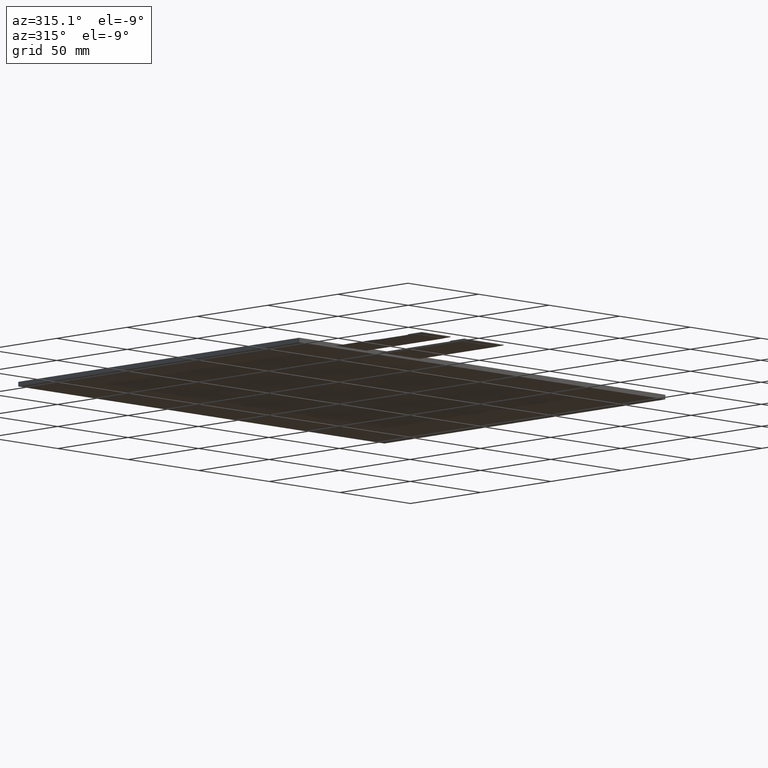
[diagram: clean part render]
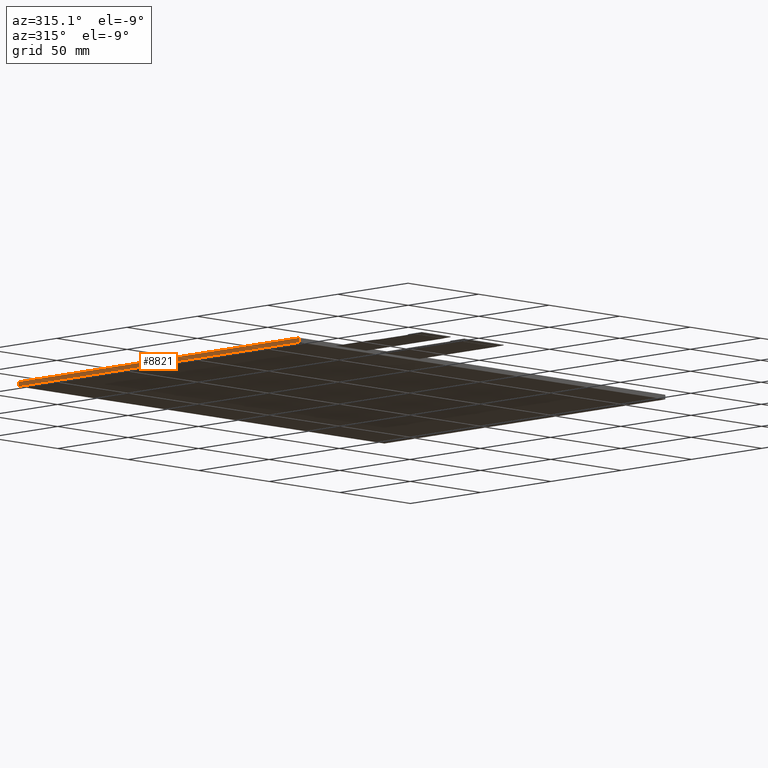
[diagram: same view with one face highlighted and labeled with its STEP entity id]
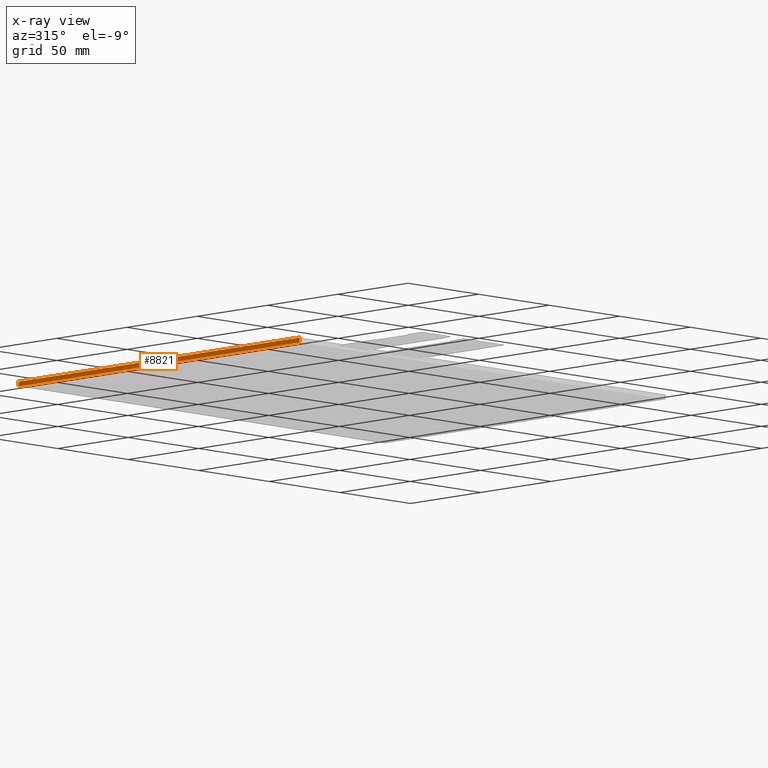
[diagram: x-ray of the same camera — body ghosted, the highlighted face saturated]
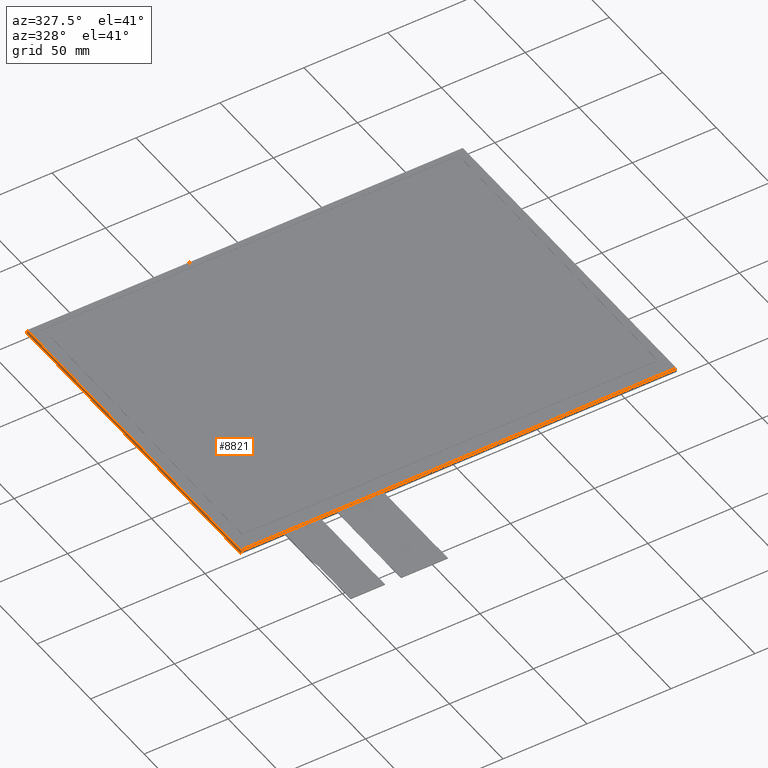
[diagram: same view with one face highlighted and labeled with its STEP entity id]
A machine part, auxiliary view. The second image highlights one B-rep face of the part: STEP entity #8821.
The next image is the same camera in x-ray: the body ghosted, the highlighted face saturated — about 0% of this face is hidden behind the body in this view.
A second angle (auxiliary view) of the same face is appended — the face is thin or edge-on in the first view.
In plain terms, the highlighted planar face has unit normal (-1, -0, 0).
Its self-contained STEP definition (entity closure, byte-faithful):
#485=PLANE('',#9275);
#907=FACE_OUTER_BOUND('',#1331,.T.);
#1331=EDGE_LOOP('',(#8367,#8368,#8369,#8370));
#2564=LINE('',#13868,#3800);
#2567=LINE('',#13874,#3803);
#2568=LINE('',#13876,#3804);
#2569=LINE('',#13877,#3805);
#3800=VECTOR('',#11364,10.);
#3803=VECTOR('',#11369,10.);
#3804=VECTOR('',#11370,10.);
#3805=VECTOR('',#11371,10.);
#4648=VERTEX_POINT('',#13865);
#4649=VERTEX_POINT('',#13867);
#4651=VERTEX_POINT('',#13873);
#4652=VERTEX_POINT('',#13875);
#5892=EDGE_CURVE('',#4648,#4649,#2564,.T.);
#5895=EDGE_CURVE('',#4648,#4651,#2567,.T.);
#5896=EDGE_CURVE('',#4652,#4651,#2568,.T.);
#5897=EDGE_CURVE('',#4649,#4652,#2569,.T.);
#8367=ORIENTED_EDGE('',*,*,#5892,.F.);
#8368=ORIENTED_EDGE('',*,*,#5895,.T.);
#8369=ORIENTED_EDGE('',*,*,#5896,.F.);
#8370=ORIENTED_EDGE('',*,*,#5897,.F.);
#8821=ADVANCED_FACE('',(#907),#485,.T.);
#9275=AXIS2_PLACEMENT_3D('',#13872,#11367,#11368);
#11364=DIRECTION('',(3.5527136788005E-16,-1.,0.));
#11367=DIRECTION('center_axis',(-1.,-3.5527136788005E-16,0.));
#11368=DIRECTION('ref_axis',(-3.5527136788005E-16,1.,0.));
#11369=DIRECTION('',(0.,0.,-1.));
#11370=DIRECTION('',(-3.5527136788005E-16,1.,0.));
#11371=DIRECTION('',(0.,0.,-1.));
#13865=CARTESIAN_POINT('',(-130.1,97.65,0.));
#13867=CARTESIAN_POINT('',(-130.1,-102.35,0.));
#13868=CARTESIAN_POINT('',(-130.1,97.6500000000001,0.));
#13872=CARTESIAN_POINT('Origin',(-130.1,-102.35,0.));
#13873=CARTESIAN_POINT('',(-130.1,97.65,-2.35));
#13874=CARTESIAN_POINT('',(-130.1,97.65,0.));
#13875=CARTESIAN_POINT('',(-130.1,-102.35,-2.35));
#13876=CARTESIAN_POINT('',(-130.1,97.6500000000001,-2.35));
#13877=CARTESIAN_POINT('',(-130.1,-102.35,0.));